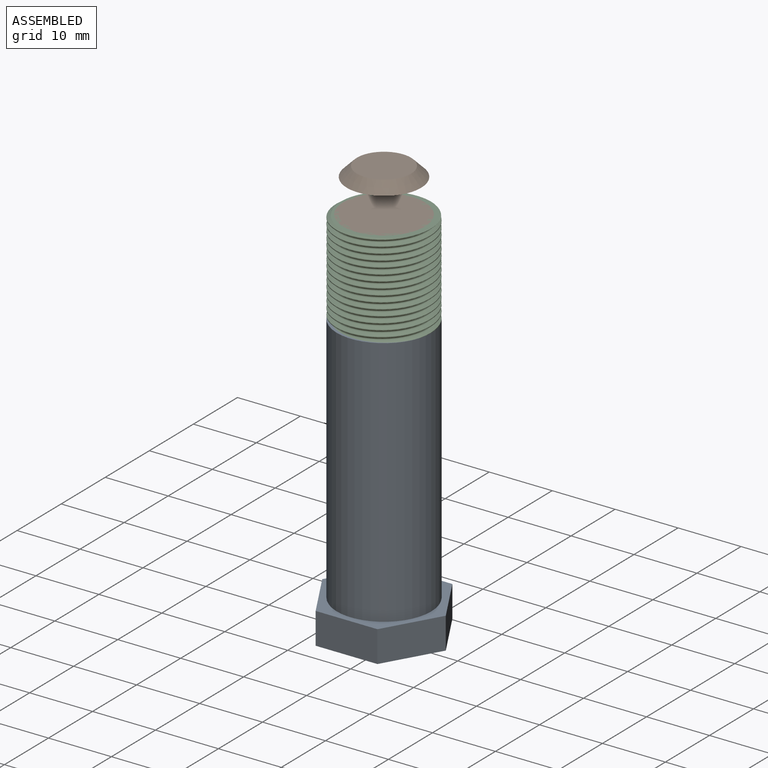
[diagram: assembled view]
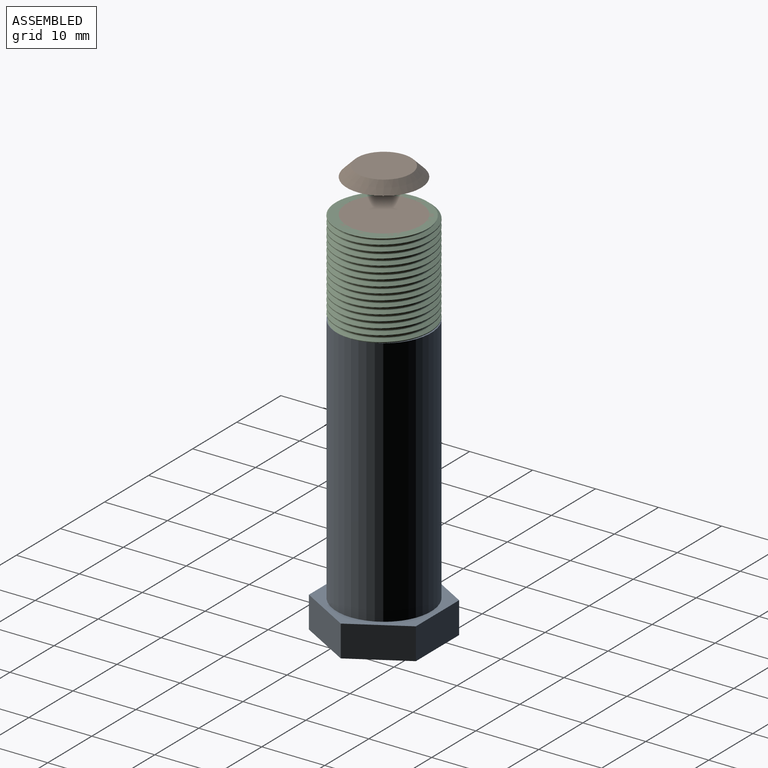
[diagram: assembled view, second angle]
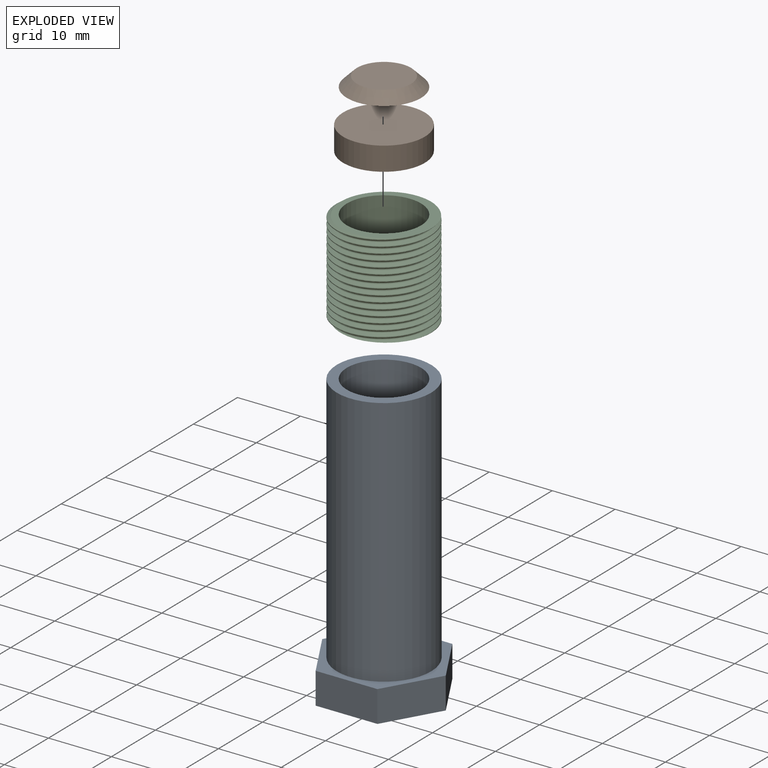
[diagram: exploded view]
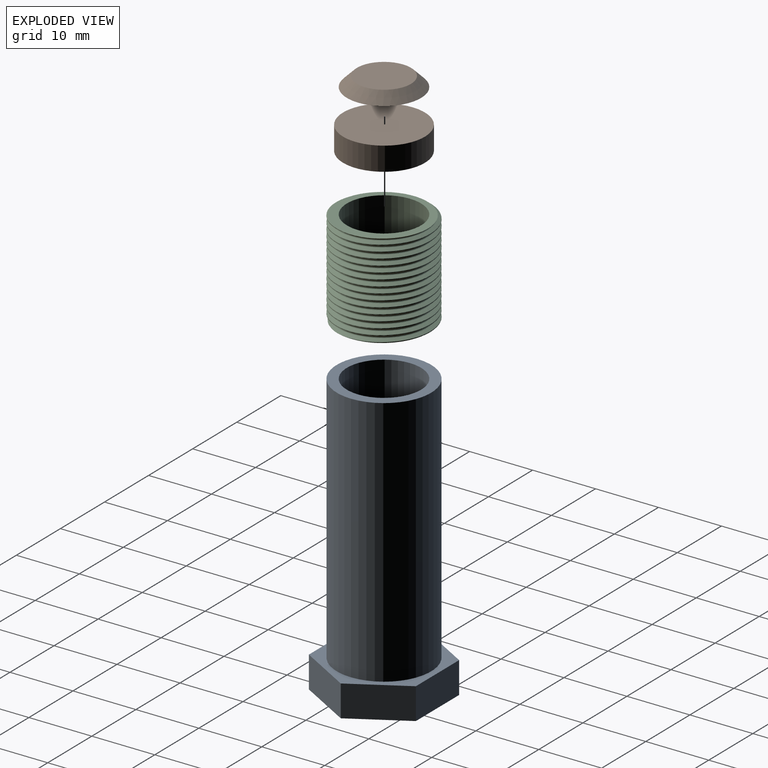
[diagram: exploded view, second angle]
ASSEMBLY  parts=3 mates=2
PART A: 11 faces, bbox 19.6x17x45 mm
  f0: cylinder r=5.9mm len=45mm, axis (0,0,-1), area 1668.2mm2, adj f2,f9
  f1: cylinder r=7.5mm len=40mm, axis (0,0,-1), area 1885mm2, adj f2,f10
  f2: plane 15x15mm, normal (0,0,1), area 67.4mm2, adj f0,f1
  f3: plane 8.5x5mm, normal (-0.87,-0.5,0), area 49.1mm2, adj f4,f8,f9,f10
  f4: plane 9.82x5mm, normal (0,-1,0), area 49.1mm2, adj f3,f5,f9,f10
  f5: plane 8.5x5mm, normal (0.87,-0.5,0), area 49.1mm2, adj f4,f6,f9,f10
  f6: plane 8.5x5mm, normal (0.87,0.5,0), area 49.1mm2, adj f5,f7,f9,f10
  f7: plane 9.82x5mm, normal (0,1,0), area 49.1mm2, adj f6,f8,f9,f10
  f8: plane 8.5x5mm, normal (-0.87,0.5,0), area 49.1mm2, adj f3,f7,f9,f10
  f9: plane 19.63x17mm, normal (0,0,-1), area 140.9mm2, adj f0,f3,f4,f5,f6,f7,f8
  f10: plane 19.63x17mm, normal (0,0,1), area 73.6mm2, adj f1,f3,f4,f5,f6,f7,f8
PART B: 9 faces, bbox 13x13x10.8 mm
  f0: cone r=4.3mm half-angle=45deg, axis (0,0,-1), area 72.5mm2, adj f1
  f1: plane 8.6x8.6mm, normal (0,0,1), area 58.1mm2, adj f0
  f2: cylinder r=5.9mm len=11.8mm, axis (0,0,-1), area 0mm2
  f3: plane 13x13mm, normal (0,0,1), area 132.7mm2, adj f4,f5,f6
  f4: plane 6.5x3.75mm, normal (0,1,0), area 12.2mm2, adj f3,f5,f7,f8
  f5: cylinder r=6.5mm len=13mm, axis (0,0,-1), area 153.3mm2, adj f3,f4,f6,f8
  f6: plane 6.5x3.75mm, normal (0,-1,0), area 12.2mm2, adj f3,f5,f7,f8
  f7: plane 5.9x0mm, normal (0,0,-1), area 0mm2, adj f4,f6
  f8: cone r=6.5mm half-angle=60deg, axis (0,0,-1), area 153.3mm2, adj f4,f5,f6
PART C: 7 faces, bbox 15.4x17.7x16.2 mm
  f0: cylinder r=5.9mm len=15mm, axis (0,0,-1), area 556.1mm2, adj f2,f3
  f1: cylinder r=7.5mm len=15mm, axis (0,0,-1), area 77mm2, adj f2,f3,f4,f6
  f2: plane 14.74x14.72mm, normal (0,0,1), area 52.9mm2, adj f0,f1,f4,f5,f6
  f3: plane 14.74x14.72mm, normal (0,0,-1), area 52.9mm2, adj f0,f1,f4,f5,f6
  f4: bspline ~17.32x15.81mm, area 426.2mm2, adj f1,f2,f3,f5
  f5: bspline ~16.07x15.58mm, area 197.1mm2, adj f2,f3,f4,f6
  f6: bspline ~17.32x15.81mm, area 426.4mm2, adj f1,f2,f3,f5
PLACE A t=(9,24.72,-18.22)mm
PLACE B t=(9,24.72,36.78)mm
PLACE C t=(9,24.72,21.78)mm
MATE fastened B.f0 <-> C.f1  axis (0,0,-1) through (9,24.72,36.78)mm
MATE fastened A.f0 <-> C.f1  axis (0,0,1) through (9,24.72,21.78)mm
